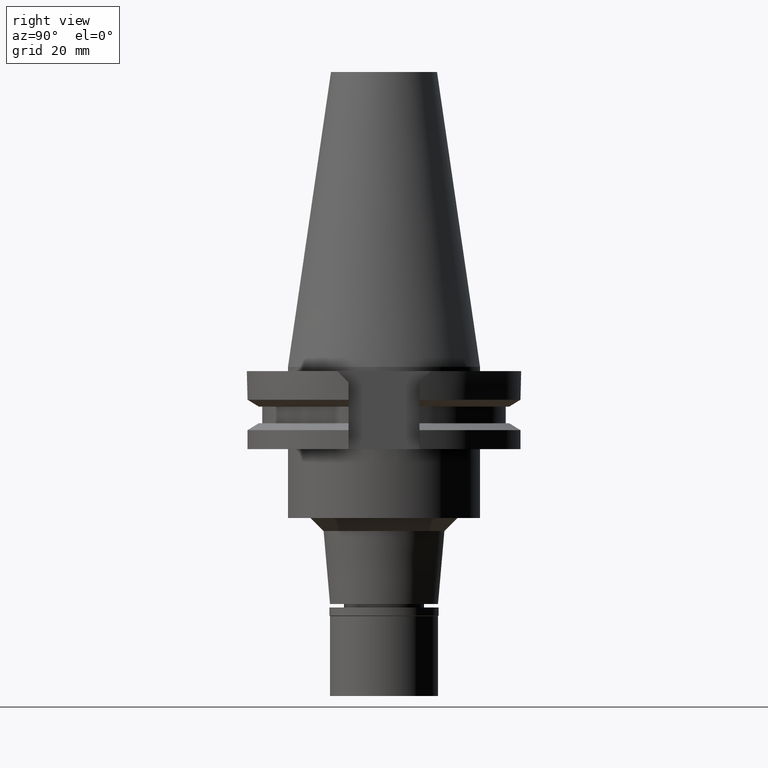
[diagram: clean part render]
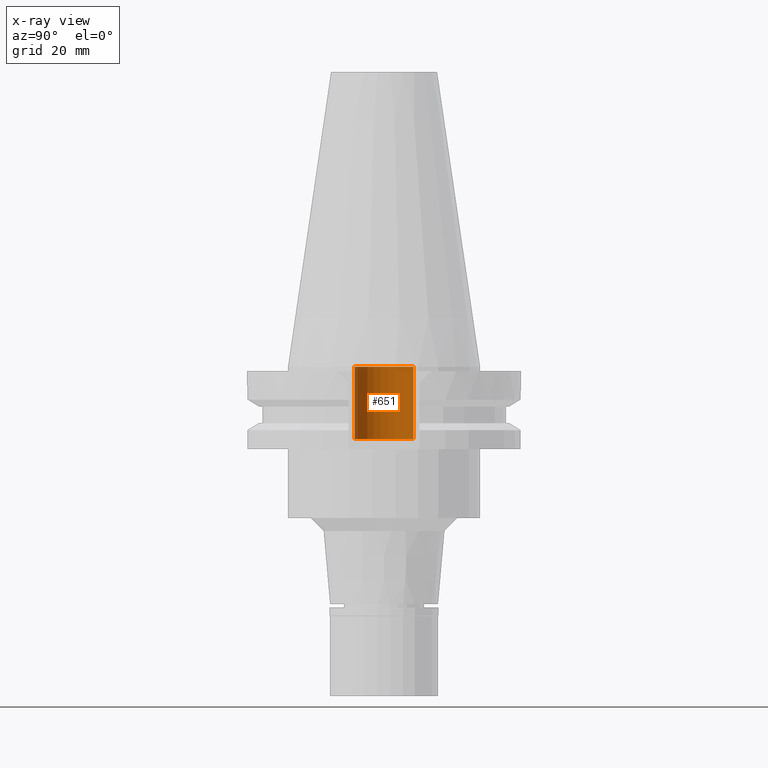
[diagram: x-ray — body ghosted, one internal face saturated and labeled with its STEP entity id]
A machine part, right view, then the same camera in x-ray: the body is ghosted and one INTERNAL B-rep face — a face not visible from any outside direction — is saturated and labeled: STEP entity #651.
In plain terms, the highlighted cylindrical surface (edge-blend (fillet) strip) has radius 6.8 mm, axis along (0, 0, -1).
Its self-contained STEP definition (entity closure, byte-faithful):
#101 = EDGE_CURVE ( 'NONE', #3123, #2233, #3344, .T. ) ;
#115 = ORIENTED_EDGE ( 'NONE', *, *, #2869, .T. ) ;
#270 = CARTESIAN_POINT ( 'NONE',  ( 0.0000000000000000000, -6.799999999999999822, -16.75000000000000000 ) ) ;
#306 = CIRCLE ( 'NONE', #2306, 6.799999999999999822 ) ;
#482 = CARTESIAN_POINT ( 'NONE',  ( 0.0000000000000000000, 2.145121949555999817E-14, 75.16249999999999432 ) ) ;
#506 = DIRECTION ( 'NONE',  ( 0.0000000000000000000, 0.0000000000000000000, 1.000000000000000000 ) ) ;
#651 = ADVANCED_FACE ( 'NONE', ( #1766 ), #3316, .F. ) ;
#782 = EDGE_CURVE ( 'NONE', #3187, #2591, #2636, .T. ) ;
#864 = CARTESIAN_POINT ( 'NONE',  ( 0.0000000000000000000, 2.145121949555999817E-14, 7.105427357600999334E-14 ) ) ;
#955 = EDGE_CURVE ( 'NONE', #2591, #2233, #306, .T. ) ;
#959 = EDGE_LOOP ( 'NONE', ( #1359, #1910, #115, #1420 ) ) ;
#1131 = DIRECTION ( 'NONE',  ( 0.0000000000000000000, 0.0000000000000000000, -1.000000000000000000 ) ) ;
#1238 = DIRECTION ( 'NONE',  ( 0.0000000000000000000, -1.000000000000000000, 0.0000000000000000000 ) ) ;
#1359 = ORIENTED_EDGE ( 'NONE', *, *, #955, .F. ) ;
#1361 = CARTESIAN_POINT ( 'NONE',  ( 0.0000000000000000000, -6.799999999999999822, 7.105427357600999334E-14 ) ) ;
#1387 = CIRCLE ( 'NONE', #2694, 6.799999999999999822 ) ;
#1399 = CARTESIAN_POINT ( 'NONE',  ( 0.0000000000000000000, 2.145121949555999817E-14, -16.75000000000000000 ) ) ;
#1420 = ORIENTED_EDGE ( 'NONE', *, *, #101, .T. ) ;
#1620 = AXIS2_PLACEMENT_3D ( 'NONE', #482, #2042, #1238 ) ;
#1682 = DIRECTION ( 'NONE',  ( 0.0000000000000000000, -1.000000000000000000, 0.0000000000000000000 ) ) ;
#1766 = FACE_OUTER_BOUND ( 'NONE', #959, .T. ) ;
#1910 = ORIENTED_EDGE ( 'NONE', *, *, #782, .F. ) ;
#1912 = CARTESIAN_POINT ( 'NONE',  ( 0.0000000000000000000, 6.799999999999999822, 7.105427357600999334E-14 ) ) ;
#1959 = DIRECTION ( 'NONE',  ( 0.0000000000000000000, 0.0000000000000000000, -1.000000000000000000 ) ) ;
#2042 = DIRECTION ( 'NONE',  ( 0.0000000000000000000, 0.0000000000000000000, -1.000000000000000000 ) ) ;
#2214 = DIRECTION ( 'NONE',  ( 0.0000000000000000000, 0.0000000000000000000, 1.000000000000000000 ) ) ;
#2233 = VERTEX_POINT ( 'NONE', #1912 ) ;
#2306 = AXIS2_PLACEMENT_3D ( 'NONE', #864, #1131, #2947 ) ;
#2342 = CARTESIAN_POINT ( 'NONE',  ( 0.0000000000000000000, 6.799999999999999822, -16.75000000000000000 ) ) ;
#2591 = VERTEX_POINT ( 'NONE', #1361 ) ;
#2636 = LINE ( 'NONE', #270, #3157 ) ;
#2694 = AXIS2_PLACEMENT_3D ( 'NONE', #1399, #1959, #1682 ) ;
#2851 = CARTESIAN_POINT ( 'NONE',  ( 0.0000000000000000000, 6.799999999999999822, -16.75000000000000000 ) ) ;
#2869 = EDGE_CURVE ( 'NONE', #3187, #3123, #1387, .T. ) ;
#2947 = DIRECTION ( 'NONE',  ( 0.0000000000000000000, -1.000000000000000000, 0.0000000000000000000 ) ) ;
#3021 = VECTOR ( 'NONE', #2214, 1000.000000000000000 ) ;
#3123 = VERTEX_POINT ( 'NONE', #2342 ) ;
#3148 = CARTESIAN_POINT ( 'NONE',  ( 0.0000000000000000000, -6.799999999999999822, -16.75000000000000000 ) ) ;
#3157 = VECTOR ( 'NONE', #506, 1000.000000000000000 ) ;
#3187 = VERTEX_POINT ( 'NONE', #3148 ) ;
#3316 = CYLINDRICAL_SURFACE ( 'NONE', #1620, 6.799999999999999822 ) ;
#3344 = LINE ( 'NONE', #2851, #3021 ) ;